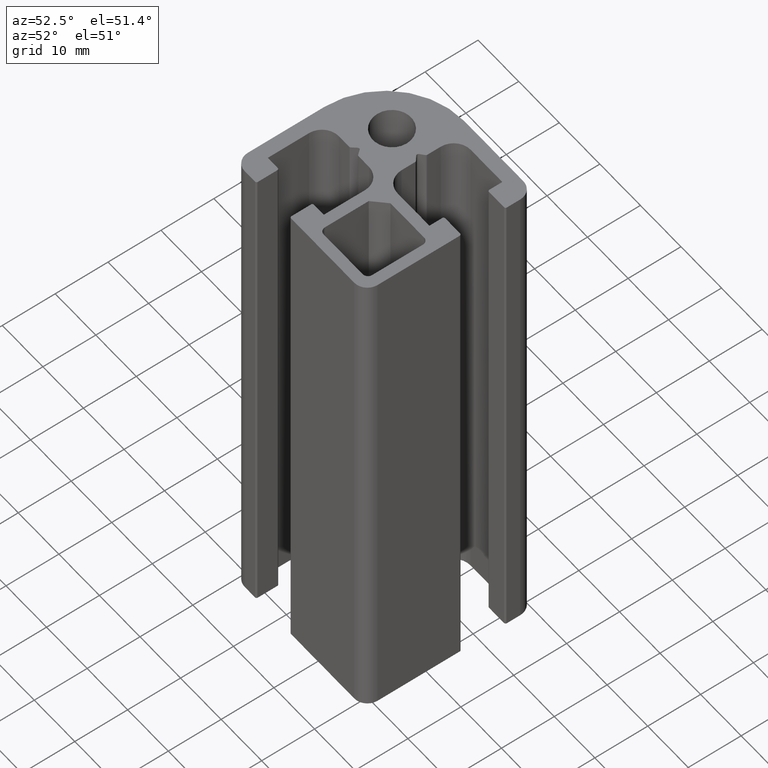
[diagram: clean part render]
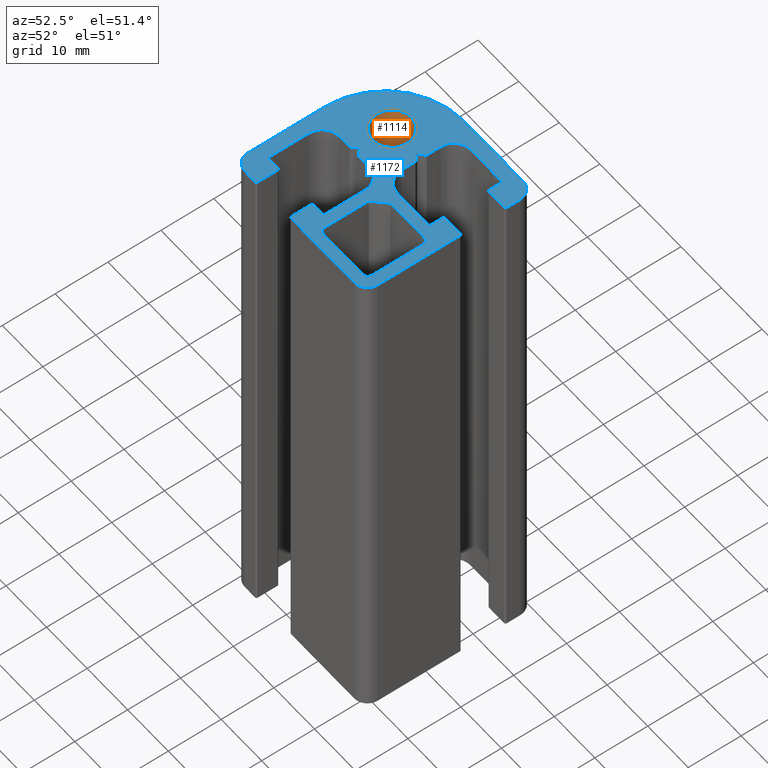
[diagram: same view with the hole feature highlighted: cylindrical wall and planar end face, labeled with their STEP entity ids]
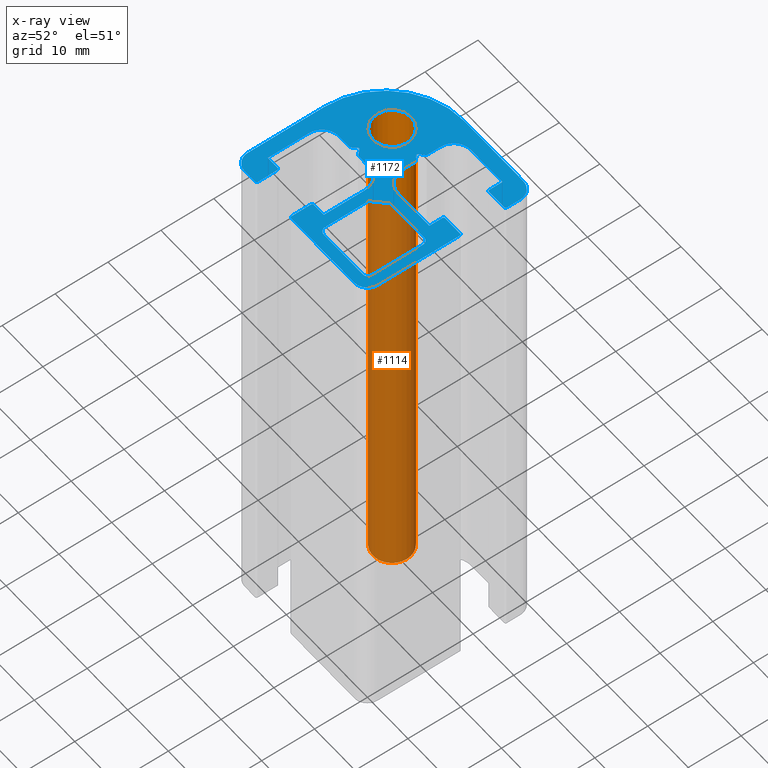
[diagram: x-ray of the same camera — body ghosted, the hole faces saturated]
A machine part, auxiliary view. The highlighted faces form one hole feature of diameter 7.2 mm: the cylindrical wall (entity #1114, orange) and its adjacent planar end face (entity #1172, blue) — they share a circular edge in the B-rep.
The next image is the same camera in x-ray (body ghosted, the hole faces saturated) — the bore reads through the body.
Wall:
#284=FACE_BOUND('',#349,.T.);
#289=FACE_OUTER_BOUND('',#348,.T.);
#348=EDGE_LOOP('',(#748));
#349=EDGE_LOOP('',(#749));
#412=CIRCLE('',#1176,3.6);
#413=CIRCLE('',#1177,3.6);
#464=VERTEX_POINT('',#1630);
#465=VERTEX_POINT('',#1632);
#578=EDGE_CURVE('',#464,#464,#412,.T.);
#579=EDGE_CURVE('',#465,#465,#413,.T.);
#748=ORIENTED_EDGE('',*,*,#578,.F.);
#749=ORIENTED_EDGE('',*,*,#579,.F.);
#1088=CYLINDRICAL_SURFACE('',#1175,3.6);
#1114=ADVANCED_FACE('',(#289,#284),#1088,.F.);
#1175=AXIS2_PLACEMENT_3D('',#1629,#1288,#1289);
#1176=AXIS2_PLACEMENT_3D('',#1631,#1290,#1291);
#1177=AXIS2_PLACEMENT_3D('',#1633,#1292,#1293);
#1288=DIRECTION('center_axis',(0.,0.,1.));
#1289=DIRECTION('ref_axis',(-1.,0.,0.));
#1290=DIRECTION('center_axis',(0.,0.,-1.));
#1291=DIRECTION('ref_axis',(-1.,0.,0.));
#1292=DIRECTION('center_axis',(0.,0.,1.));
#1293=DIRECTION('ref_axis',(-1.,0.,0.));
#1629=CARTESIAN_POINT('Origin',(0.,0.,0.));
#1630=CARTESIAN_POINT('',(3.6,-4.40872847693047E-16,100.));
#1631=CARTESIAN_POINT('Origin',(0.,0.,100.));
#1632=CARTESIAN_POINT('',(3.6,4.40872847693047E-16,0.));
#1633=CARTESIAN_POINT('Origin',(0.,0.,0.));
End face:
#47=PLANE('',#1285);
#50=LINE('',#1645,#168);
#53=LINE('',#1651,#171);
#56=LINE('',#1657,#174);
#60=LINE('',#1669,#178);
#64=LINE('',#1680,#182);
#68=LINE('',#1693,#186);
#74=LINE('',#1714,#192);
#78=LINE('',#1726,#196);
#81=LINE('',#1732,#199);
#85=LINE('',#1744,#203);
#89=LINE('',#1756,#207);
#93=LINE('',#1768,#211);
#97=LINE('',#1780,#215);
#101=LINE('',#1792,#219);
#104=LINE('',#1797,#222);
#108=LINE('',#1811,#226);
#112=LINE('',#1819,#230);
#116=LINE('',#1831,#234);
#120=LINE('',#1843,#238);
#124=LINE('',#1855,#242);
#128=LINE('',#1867,#246);
#132=LINE('',#1879,#250);
#135=LINE('',#1885,#253);
#139=LINE('',#1897,#257);
#145=LINE('',#1918,#263);
#148=LINE('',#1927,#266);
#151=LINE('',#1933,#269);
#156=LINE('',#1942,#274);
#157=LINE('',#1945,#275);
#163=LINE('',#1962,#281);
#165=LINE('',#1970,#283);
#168=VECTOR('',#1304,8.26653849340352);
#171=VECTOR('',#1309,3.30001290057615);
#174=VECTOR('',#1314,8.26653849340351);
#178=VECTOR('',#1326,9.59999998680799);
#182=VECTOR('',#1338,9.59999998680799);
#186=VECTOR('',#1350,3.7000000000012);
#192=VECTOR('',#1370,3.7000000000012);
#196=VECTOR('',#1382,2.4500000000006);
#199=VECTOR('',#1387,7.79999993120909);
#203=VECTOR('',#1399,2.56570460979728);
#207=VECTOR('',#1411,1.04228622063041);
#211=VECTOR('',#1423,1.04228513007787);
#215=VECTOR('',#1435,2.56091760979783);
#219=VECTOR('',#1447,7.79999993120908);
#222=VECTOR('',#1452,2.45000000000059);
#226=VECTOR('',#1464,2.4500000000006);
#230=VECTOR('',#1470,7.79999993120908);
#234=VECTOR('',#1482,2.56331160979666);
#238=VECTOR('',#1494,1.04228512855236);
#242=VECTOR('',#1506,1.04228513158356);
#246=VECTOR('',#1518,2.56331160979783);
#250=VECTOR('',#1530,7.79999993120909);
#253=VECTOR('',#1535,2.4500000000006);
#257=VECTOR('',#1547,3.70000000000119);
#263=VECTOR('',#1567,3.70000000000119);
#266=VECTOR('',#1578,2.5500000000006);
#269=VECTOR('',#1583,14.5);
#274=VECTOR('',#1590,2.55000000000061);
#275=VECTOR('',#1593,15.5500000000006);
#281=VECTOR('',#1613,14.5);
#283=VECTOR('',#1625,15.5500000000006);
#287=FACE_BOUND('',#410,.T.);
#288=FACE_BOUND('',#411,.T.);
#347=FACE_OUTER_BOUND('',#409,.T.);
#409=EDGE_LOOP('',(#1031,#1032,#1033,#1034,#1035,#1036,#1037,#1038,#1039,
#1040,#1041,#1042,#1043,#1044,#1045,#1046,#1047,#1048,#1049,#1050,#1051,
#1052,#1053,#1054,#1055,#1056,#1057,#1058,#1059,#1060,#1061,#1062,#1063,
#1064,#1065,#1066,#1067,#1068,#1069,#1070,#1071,#1072,#1073,#1074,#1075,
#1076,#1077,#1078));
#410=EDGE_LOOP('',(#1079));
#411=EDGE_LOOP('',(#1080,#1081,#1082,#1083,#1084,#1085,#1086,#1087));
#412=CIRCLE('',#1176,3.6);
#414=CIRCLE('',#1179,1.000000006596);
#416=CIRCLE('',#1185,1.000000006596);
#418=CIRCLE('',#1189,1.000000006596);
#420=CIRCLE('',#1193,0.299999999999407);
#422=CIRCLE('',#1197,0.299999999999406);
#424=CIRCLE('',#1200,0.299999999999407);
#426=CIRCLE('',#1204,0.299999999999405);
#428=CIRCLE('',#1209,3.20000006879091);
#430=CIRCLE('',#1213,0.299999999999405);
#432=CIRCLE('',#1217,0.299999999999406);
#434=CIRCLE('',#1221,0.299999999999406);
#436=CIRCLE('',#1225,3.20000006879091);
#438=CIRCLE('',#1230,15.);
#440=CIRCLE('',#1235,3.20000006879091);
#442=CIRCLE('',#1239,0.299999999999406);
#444=CIRCLE('',#1243,0.299999999999406);
#446=CIRCLE('',#1247,0.299999999999406);
#448=CIRCLE('',#1251,3.20000006879091);
#450=CIRCLE('',#1256,0.299999999999407);
#452=CIRCLE('',#1260,0.299999999999405);
#454=CIRCLE('',#1263,0.299999999999407);
#456=CIRCLE('',#1267,0.299999999999405);
#461=CIRCLE('',#1278,2.5);
#462=CIRCLE('',#1281,2.5);
#463=CIRCLE('',#1283,2.5);
#464=VERTEX_POINT('',#1630);
#466=VERTEX_POINT('',#1635);
#467=VERTEX_POINT('',#1636);
#470=VERTEX_POINT('',#1644);
#472=VERTEX_POINT('',#1650);
#474=VERTEX_POINT('',#1656);
#476=VERTEX_POINT('',#1662);
#478=VERTEX_POINT('',#1668);
#480=VERTEX_POINT('',#1674);
#482=VERTEX_POINT('',#1683);
#483=VERTEX_POINT('',#1684);
#486=VERTEX_POINT('',#1692);
#488=VERTEX_POINT('',#1698);
#490=VERTEX_POINT('',#1704);
#491=VERTEX_POINT('',#1705);
#494=VERTEX_POINT('',#1713);
#496=VERTEX_POINT('',#1719);
#498=VERTEX_POINT('',#1725);
#500=VERTEX_POINT('',#1731);
#502=VERTEX_POINT('',#1737);
#504=VERTEX_POINT('',#1743);
#506=VERTEX_POINT('',#1749);
#508=VERTEX_POINT('',#1755);
#510=VERTEX_POINT('',#1761);
#512=VERTEX_POINT('',#1767);
#514=VERTEX_POINT('',#1773);
#516=VERTEX_POINT('',#1779);
#518=VERTEX_POINT('',#1785);
#520=VERTEX_POINT('',#1791);
#522=VERTEX_POINT('',#1800);
#523=VERTEX_POINT('',#1801);
#526=VERTEX_POINT('',#1809);
#527=VERTEX_POINT('',#1810);
#530=VERTEX_POINT('',#1818);
#532=VERTEX_POINT('',#1824);
#534=VERTEX_POINT('',#1830);
#536=VERTEX_POINT('',#1836);
#538=VERTEX_POINT('',#1842);
#540=VERTEX_POINT('',#1848);
#542=VERTEX_POINT('',#1854);
#544=VERTEX_POINT('',#1860);
#546=VERTEX_POINT('',#1866);
#548=VERTEX_POINT('',#1872);
#550=VERTEX_POINT('',#1878);
#552=VERTEX_POINT('',#1884);
#554=VERTEX_POINT('',#1890);
#556=VERTEX_POINT('',#1896);
#558=VERTEX_POINT('',#1902);
#560=VERTEX_POINT('',#1908);
#561=VERTEX_POINT('',#1909);
#564=VERTEX_POINT('',#1917);
#566=VERTEX_POINT('',#1926);
#568=VERTEX_POINT('',#1932);
#571=VERTEX_POINT('',#1940);
#572=VERTEX_POINT('',#1944);
#576=VERTEX_POINT('',#1958);
#577=VERTEX_POINT('',#1966);
#578=EDGE_CURVE('',#464,#464,#412,.T.);
#580=EDGE_CURVE('',#466,#467,#414,.T.);
#584=EDGE_CURVE('',#467,#470,#50,.T.);
#587=EDGE_CURVE('',#470,#472,#53,.T.);
#590=EDGE_CURVE('',#472,#474,#56,.T.);
#593=EDGE_CURVE('',#474,#476,#416,.T.);
#596=EDGE_CURVE('',#476,#478,#60,.T.);
#599=EDGE_CURVE('',#478,#480,#418,.T.);
#602=EDGE_CURVE('',#480,#466,#64,.T.);
#604=EDGE_CURVE('',#482,#483,#420,.T.);
#608=EDGE_CURVE('',#486,#482,#68,.T.);
#611=EDGE_CURVE('',#488,#486,#422,.T.);
#614=EDGE_CURVE('',#490,#491,#424,.T.);
#618=EDGE_CURVE('',#494,#490,#74,.T.);
#621=EDGE_CURVE('',#496,#494,#426,.T.);
#624=EDGE_CURVE('',#498,#496,#78,.T.);
#627=EDGE_CURVE('',#500,#498,#81,.T.);
#630=EDGE_CURVE('',#502,#500,#428,.T.);
#633=EDGE_CURVE('',#504,#502,#85,.T.);
#636=EDGE_CURVE('',#506,#504,#430,.T.);
#639=EDGE_CURVE('',#508,#506,#89,.T.);
#642=EDGE_CURVE('',#510,#508,#432,.T.);
#645=EDGE_CURVE('',#512,#510,#93,.T.);
#648=EDGE_CURVE('',#514,#512,#434,.T.);
#651=EDGE_CURVE('',#516,#514,#97,.T.);
#654=EDGE_CURVE('',#518,#516,#436,.T.);
#657=EDGE_CURVE('',#520,#518,#101,.T.);
#660=EDGE_CURVE('',#483,#520,#104,.T.);
#662=EDGE_CURVE('',#522,#523,#438,.T.);
#666=EDGE_CURVE('',#526,#527,#108,.T.);
#670=EDGE_CURVE('',#530,#526,#112,.T.);
#673=EDGE_CURVE('',#532,#530,#440,.T.);
#676=EDGE_CURVE('',#534,#532,#116,.T.);
#679=EDGE_CURVE('',#536,#534,#442,.T.);
#682=EDGE_CURVE('',#538,#536,#120,.T.);
#685=EDGE_CURVE('',#540,#538,#444,.T.);
#688=EDGE_CURVE('',#542,#540,#124,.T.);
#691=EDGE_CURVE('',#544,#542,#446,.T.);
#694=EDGE_CURVE('',#546,#544,#128,.T.);
#697=EDGE_CURVE('',#548,#546,#448,.T.);
#700=EDGE_CURVE('',#550,#548,#132,.T.);
#703=EDGE_CURVE('',#552,#550,#135,.T.);
#706=EDGE_CURVE('',#554,#552,#450,.T.);
#709=EDGE_CURVE('',#556,#554,#139,.T.);
#712=EDGE_CURVE('',#558,#556,#452,.T.);
#715=EDGE_CURVE('',#560,#561,#454,.T.);
#719=EDGE_CURVE('',#564,#560,#145,.T.);
#722=EDGE_CURVE('',#527,#564,#456,.T.);
#724=EDGE_CURVE('',#488,#566,#148,.T.);
#727=EDGE_CURVE('',#522,#568,#151,.T.);
#732=EDGE_CURVE('',#571,#561,#156,.T.);
#733=EDGE_CURVE('',#558,#572,#157,.T.);
#741=EDGE_CURVE('',#566,#576,#461,.T.);
#743=EDGE_CURVE('',#576,#523,#163,.T.);
#744=EDGE_CURVE('',#568,#571,#462,.T.);
#745=EDGE_CURVE('',#572,#577,#463,.T.);
#747=EDGE_CURVE('',#577,#491,#165,.T.);
#1031=ORIENTED_EDGE('',*,*,#614,.T.);
#1032=ORIENTED_EDGE('',*,*,#747,.F.);
#1033=ORIENTED_EDGE('',*,*,#745,.F.);
#1034=ORIENTED_EDGE('',*,*,#733,.F.);
#1035=ORIENTED_EDGE('',*,*,#712,.T.);
#1036=ORIENTED_EDGE('',*,*,#709,.T.);
#1037=ORIENTED_EDGE('',*,*,#706,.T.);
#1038=ORIENTED_EDGE('',*,*,#703,.T.);
#1039=ORIENTED_EDGE('',*,*,#700,.T.);
#1040=ORIENTED_EDGE('',*,*,#697,.T.);
#1041=ORIENTED_EDGE('',*,*,#694,.T.);
#1042=ORIENTED_EDGE('',*,*,#691,.T.);
#1043=ORIENTED_EDGE('',*,*,#688,.T.);
#1044=ORIENTED_EDGE('',*,*,#685,.T.);
#1045=ORIENTED_EDGE('',*,*,#682,.T.);
#1046=ORIENTED_EDGE('',*,*,#679,.T.);
#1047=ORIENTED_EDGE('',*,*,#676,.T.);
#1048=ORIENTED_EDGE('',*,*,#673,.T.);
#1049=ORIENTED_EDGE('',*,*,#670,.T.);
#1050=ORIENTED_EDGE('',*,*,#666,.T.);
#1051=ORIENTED_EDGE('',*,*,#722,.T.);
#1052=ORIENTED_EDGE('',*,*,#719,.T.);
#1053=ORIENTED_EDGE('',*,*,#715,.T.);
#1054=ORIENTED_EDGE('',*,*,#732,.F.);
#1055=ORIENTED_EDGE('',*,*,#744,.F.);
#1056=ORIENTED_EDGE('',*,*,#727,.F.);
#1057=ORIENTED_EDGE('',*,*,#662,.T.);
#1058=ORIENTED_EDGE('',*,*,#743,.F.);
#1059=ORIENTED_EDGE('',*,*,#741,.F.);
#1060=ORIENTED_EDGE('',*,*,#724,.F.);
#1061=ORIENTED_EDGE('',*,*,#611,.T.);
#1062=ORIENTED_EDGE('',*,*,#608,.T.);
#1063=ORIENTED_EDGE('',*,*,#604,.T.);
#1064=ORIENTED_EDGE('',*,*,#660,.T.);
#1065=ORIENTED_EDGE('',*,*,#657,.T.);
#1066=ORIENTED_EDGE('',*,*,#654,.T.);
#1067=ORIENTED_EDGE('',*,*,#651,.T.);
#1068=ORIENTED_EDGE('',*,*,#648,.T.);
#1069=ORIENTED_EDGE('',*,*,#645,.T.);
#1070=ORIENTED_EDGE('',*,*,#642,.T.);
#1071=ORIENTED_EDGE('',*,*,#639,.T.);
#1072=ORIENTED_EDGE('',*,*,#636,.T.);
#1073=ORIENTED_EDGE('',*,*,#633,.T.);
#1074=ORIENTED_EDGE('',*,*,#630,.T.);
#1075=ORIENTED_EDGE('',*,*,#627,.T.);
#1076=ORIENTED_EDGE('',*,*,#624,.T.);
#1077=ORIENTED_EDGE('',*,*,#621,.T.);
#1078=ORIENTED_EDGE('',*,*,#618,.T.);
#1079=ORIENTED_EDGE('',*,*,#578,.T.);
#1080=ORIENTED_EDGE('',*,*,#580,.T.);
#1081=ORIENTED_EDGE('',*,*,#584,.T.);
#1082=ORIENTED_EDGE('',*,*,#587,.T.);
#1083=ORIENTED_EDGE('',*,*,#590,.T.);
#1084=ORIENTED_EDGE('',*,*,#593,.T.);
#1085=ORIENTED_EDGE('',*,*,#596,.T.);
#1086=ORIENTED_EDGE('',*,*,#599,.T.);
#1087=ORIENTED_EDGE('',*,*,#602,.T.);
#1172=ADVANCED_FACE('',(#347,#287,#288),#47,.T.);
#1176=AXIS2_PLACEMENT_3D('',#1631,#1290,#1291);
#1179=AXIS2_PLACEMENT_3D('',#1637,#1296,#1297);
#1185=AXIS2_PLACEMENT_3D('',#1663,#1319,#1320);
#1189=AXIS2_PLACEMENT_3D('',#1675,#1331,#1332);
#1193=AXIS2_PLACEMENT_3D('',#1685,#1342,#1343);
#1197=AXIS2_PLACEMENT_3D('',#1699,#1355,#1356);
#1200=AXIS2_PLACEMENT_3D('',#1706,#1362,#1363);
#1204=AXIS2_PLACEMENT_3D('',#1720,#1375,#1376);
#1209=AXIS2_PLACEMENT_3D('',#1738,#1392,#1393);
#1213=AXIS2_PLACEMENT_3D('',#1750,#1404,#1405);
#1217=AXIS2_PLACEMENT_3D('',#1762,#1416,#1417);
#1221=AXIS2_PLACEMENT_3D('',#1774,#1428,#1429);
#1225=AXIS2_PLACEMENT_3D('',#1786,#1440,#1441);
#1230=AXIS2_PLACEMENT_3D('',#1802,#1456,#1457);
#1235=AXIS2_PLACEMENT_3D('',#1825,#1475,#1476);
#1239=AXIS2_PLACEMENT_3D('',#1837,#1487,#1488);
#1243=AXIS2_PLACEMENT_3D('',#1849,#1499,#1500);
#1247=AXIS2_PLACEMENT_3D('',#1861,#1511,#1512);
#1251=AXIS2_PLACEMENT_3D('',#1873,#1523,#1524);
#1256=AXIS2_PLACEMENT_3D('',#1891,#1540,#1541);
#1260=AXIS2_PLACEMENT_3D('',#1903,#1552,#1553);
#1263=AXIS2_PLACEMENT_3D('',#1910,#1559,#1560);
#1267=AXIS2_PLACEMENT_3D('',#1923,#1572,#1573);
#1278=AXIS2_PLACEMENT_3D('',#1959,#1608,#1609);
#1281=AXIS2_PLACEMENT_3D('',#1964,#1616,#1617);
#1283=AXIS2_PLACEMENT_3D('',#1967,#1620,#1621);
#1285=AXIS2_PLACEMENT_3D('',#1971,#1626,#1627);
#1290=DIRECTION('center_axis',(0.,0.,-1.));
#1291=DIRECTION('ref_axis',(-1.,0.,0.));
#1296=DIRECTION('center_axis',(0.,0.,-1.));
#1297=DIRECTION('ref_axis',(1.,0.,0.));
#1304=DIRECTION('',(-2.686065093657E-16,1.,0.));
#1309=DIRECTION('',(0.707106781186547,0.707106781186547,0.));
#1314=DIRECTION('',(1.,4.0290976404855E-16,0.));
#1319=DIRECTION('center_axis',(0.,0.,-1.));
#1320=DIRECTION('ref_axis',(-1.,0.,0.));
#1326=DIRECTION('',(0.,-1.,0.));
#1331=DIRECTION('center_axis',(0.,0.,-1.));
#1332=DIRECTION('ref_axis',(0.,1.,0.));
#1338=DIRECTION('',(-1.,-4.62592927562829E-16,0.));
#1342=DIRECTION('center_axis',(0.,0.,1.));
#1343=DIRECTION('ref_axis',(-1.,-1.4802973661698E-14,0.));
#1350=DIRECTION('',(1.05021096923967E-15,1.,0.));
#1355=DIRECTION('center_axis',(0.,0.,1.));
#1356=DIRECTION('ref_axis',(-2.96059473233964E-14,1.,0.));
#1362=DIRECTION('center_axis',(0.,0.,1.));
#1363=DIRECTION('ref_axis',(1.,1.4802973661698E-14,0.));
#1370=DIRECTION('',(-7.50150692314052E-16,-1.,0.));
#1375=DIRECTION('center_axis',(0.,0.,1.));
#1376=DIRECTION('ref_axis',(-1.85037170771226E-15,-1.,0.));
#1382=DIRECTION('',(-1.,-9.06304509897867E-16,0.));
#1387=DIRECTION('',(1.42336286463667E-16,-1.,0.));
#1392=DIRECTION('center_axis',(0.,0.,-1.));
#1393=DIRECTION('ref_axis',(1.,0.,0.));
#1399=DIRECTION('',(1.,-8.65433238406099E-16,0.));
#1404=DIRECTION('center_axis',(0.,0.,1.));
#1405=DIRECTION('ref_axis',(0.754605563473704,0.656178667418054,0.));
#1411=DIRECTION('',(0.656178667408914,-0.754605563481652,0.));
#1416=DIRECTION('center_axis',(0.,0.,-1.));
#1417=DIRECTION('ref_axis',(0.754605563473701,0.656178667418058,0.));
#1423=DIRECTION('',(0.656178121099265,0.754606038533113,0.));
#1428=DIRECTION('center_axis',(0.,0.,1.));
#1429=DIRECTION('ref_axis',(-4.6398070570885E-13,1.,0.));
#1435=DIRECTION('',(1.,4.61271105982368E-13,0.));
#1440=DIRECTION('center_axis',(0.,0.,-1.));
#1441=DIRECTION('ref_axis',(0.,1.,0.));
#1447=DIRECTION('',(2.84672572927333E-16,1.,0.));
#1452=DIRECTION('',(-1.,1.81260901979573E-15,0.));
#1456=DIRECTION('center_axis',(0.,0.,1.));
#1457=DIRECTION('ref_axis',(-2.96059473233375E-16,-1.,0.));
#1464=DIRECTION('',(2.7189135296936E-15,-1.,0.));
#1470=DIRECTION('',(1.,1.42336286463667E-16,0.));
#1475=DIRECTION('center_axis',(0.,0.,-1.));
#1476=DIRECTION('ref_axis',(0.,1.,0.));
#1482=DIRECTION('',(4.33120585254645E-16,1.,0.));
#1487=DIRECTION('center_axis',(0.,0.,1.));
#1488=DIRECTION('ref_axis',(-0.656178121090121,0.754606038541064,0.));
#1494=DIRECTION('',(0.754606039638916,0.65617811982759,0.));
#1499=DIRECTION('center_axis',(0.,0.,-1.));
#1500=DIRECTION('ref_axis',(-0.656178121090121,0.754606038541065,0.));
#1506=DIRECTION('',(-0.754606037443213,0.656178122352652,0.));
#1511=DIRECTION('center_axis',(0.,0.,1.));
#1512=DIRECTION('ref_axis',(-1.,-4.6351811278192E-13,0.));
#1518=DIRECTION('',(-4.63439026222259E-13,1.,0.));
#1523=DIRECTION('center_axis',(0.,0.,-1.));
#1524=DIRECTION('ref_axis',(-1.,0.,0.));
#1530=DIRECTION('',(-1.,1.42336286463667E-16,0.));
#1535=DIRECTION('',(0.,-1.,0.));
#1540=DIRECTION('center_axis',(0.,0.,1.));
#1541=DIRECTION('ref_axis',(1.4802973661698E-14,-1.,0.));
#1547=DIRECTION('',(-1.,7.50150692314054E-16,0.));
#1552=DIRECTION('center_axis',(0.,0.,1.));
#1553=DIRECTION('ref_axis',(-1.,-1.29526019539856E-14,0.));
#1559=DIRECTION('center_axis',(0.,0.,1.));
#1560=DIRECTION('ref_axis',(-1.4802973661698E-14,1.,0.));
#1567=DIRECTION('',(1.,-1.50030138462811E-16,0.));
#1572=DIRECTION('center_axis',(0.,0.,1.));
#1573=DIRECTION('ref_axis',(1.,-1.85037170771226E-15,0.));
#1578=DIRECTION('',(-1.,1.64477485129653E-16,0.));
#1583=DIRECTION('',(1.,-8.22387425648264E-17,0.));
#1590=DIRECTION('',(1.64477485129653E-16,-1.,0.));
#1593=DIRECTION('',(1.64477485129653E-16,-1.,0.));
#1608=DIRECTION('center_axis',(0.,0.,-1.));
#1609=DIRECTION('ref_axis',(1.,0.,0.));
#1613=DIRECTION('',(0.,1.,0.));
#1616=DIRECTION('center_axis',(0.,0.,-1.));
#1617=DIRECTION('ref_axis',(-1.,-1.33226762955019E-15,0.));
#1620=DIRECTION('center_axis',(0.,0.,-1.));
#1621=DIRECTION('ref_axis',(1.77635683940025E-15,1.,0.));
#1625=DIRECTION('',(-1.,1.64477485129653E-16,0.));
#1626=DIRECTION('center_axis',(0.,0.,1.));
#1627=DIRECTION('ref_axis',(1.,0.,0.));
#1630=CARTESIAN_POINT('',(3.6,-4.40872847693047E-16,100.));
#1631=CARTESIAN_POINT('Origin',(0.,0.,100.));
#1635=CARTESIAN_POINT('',(9.900000006596,-20.5,100.));
#1636=CARTESIAN_POINT('',(8.9,-19.499999993404,100.));
#1637=CARTESIAN_POINT('Origin',(9.900000006596,-19.499999993404,100.));
#1644=CARTESIAN_POINT('',(8.89999999999999,-11.2334615000005,100.));
#1645=CARTESIAN_POINT('',(8.89999999999999,-8.86673075000024,100.));
#1650=CARTESIAN_POINT('',(11.2334615000005,-8.9,100.));
#1651=CARTESIAN_POINT('',(10.6500961250004,-9.48336537500012,100.));
#1656=CARTESIAN_POINT('',(19.499999993404,-8.9,100.));
#1657=CARTESIAN_POINT('',(12.999999996702,-8.9,100.));
#1662=CARTESIAN_POINT('',(20.5,-9.900000006596,100.));
#1663=CARTESIAN_POINT('Origin',(19.499999993404,-9.900000006596,100.));
#1668=CARTESIAN_POINT('',(20.5,-19.499999993404,100.));
#1669=CARTESIAN_POINT('',(20.5,-12.999999996702,100.));
#1674=CARTESIAN_POINT('',(19.499999993404,-20.5,100.));
#1675=CARTESIAN_POINT('Origin',(19.499999993404,-19.499999993404,100.));
#1680=CARTESIAN_POINT('',(8.200000003298,-20.5,100.));
#1683=CARTESIAN_POINT('',(-4.15,-18.4999999999994,100.));
#1684=CARTESIAN_POINT('',(-4.44999999999941,-18.2,100.));
#1685=CARTESIAN_POINT('Origin',(-4.44999999999941,-18.4999999999994,100.));
#1692=CARTESIAN_POINT('',(-4.15,-22.2000000000006,100.));
#1693=CARTESIAN_POINT('',(-4.14999999999999,-12.4999999999997,100.));
#1698=CARTESIAN_POINT('',(-4.4499999999994,-22.5,100.));
#1699=CARTESIAN_POINT('Origin',(-4.44999999999941,-22.2000000000006,100.));
#1704=CARTESIAN_POINT('',(4.15,-22.2000000000006,100.));
#1705=CARTESIAN_POINT('',(4.4499999999994,-22.5,100.));
#1706=CARTESIAN_POINT('Origin',(4.4499999999994,-22.2000000000006,100.));
#1713=CARTESIAN_POINT('',(4.15,-18.4999999999994,100.));
#1714=CARTESIAN_POINT('',(4.15,-14.3500000000003,100.));
#1719=CARTESIAN_POINT('',(4.4499999999994,-18.2,100.));
#1720=CARTESIAN_POINT('Origin',(4.4499999999994,-18.4999999999994,100.));
#1725=CARTESIAN_POINT('',(6.9,-18.2,100.));
#1726=CARTESIAN_POINT('',(5.47499999999971,-18.2,100.));
#1731=CARTESIAN_POINT('',(6.9,-10.4000000687909,100.));
#1732=CARTESIAN_POINT('',(6.9,-12.35,100.));
#1737=CARTESIAN_POINT('',(3.69999993120908,-7.2,100.));
#1738=CARTESIAN_POINT('Origin',(3.69999993120908,-10.4000000687909,100.));
#1743=CARTESIAN_POINT('',(1.13429532141181,-7.2,100.));
#1744=CARTESIAN_POINT('',(5.09999996560454,-7.2,100.));
#1749=CARTESIAN_POINT('',(0.907913652370146,-7.09685360022562,100.));
#1750=CARTESIAN_POINT('Origin',(1.13429532141181,-6.90000000000059,100.));
#1755=CARTESIAN_POINT('',(0.223987669058208,-6.31033861939764,100.));
#1756=CARTESIAN_POINT('',(1.96403935949851,-8.31139831787401,100.));
#1761=CARTESIAN_POINT('',(-0.228775811545325,-6.31033878329603,100.));
#1762=CARTESIAN_POINT('Origin',(-0.00239399998345412,-6.50719221962267,
100.));
#1767=CARTESIAN_POINT('',(-0.912700509849525,-7.09685343632606,100.));
#1768=CARTESIAN_POINT('',(1.17287182714645,-4.69844143706846,100.));
#1773=CARTESIAN_POINT('',(-1.13908232141126,-7.19999999999882,100.));
#1774=CARTESIAN_POINT('Origin',(-1.1390823214114,-6.89999999999941,100.));
#1779=CARTESIAN_POINT('',(-3.69999993120909,-7.2,100.));
#1780=CARTESIAN_POINT('',(2.68045883929453,-7.19999999999706,100.));
#1785=CARTESIAN_POINT('',(-6.9,-10.4000000687909,100.));
#1786=CARTESIAN_POINT('Origin',(-3.69999993120909,-10.4000000687909,100.));
#1791=CARTESIAN_POINT('',(-6.9,-18.2,100.));
#1792=CARTESIAN_POINT('',(-6.9,-8.45000003439545,100.));
#1797=CARTESIAN_POINT('',(-0.200000000000012,-18.2,100.));
#1800=CARTESIAN_POINT('',(5.5,9.5,100.));
#1801=CARTESIAN_POINT('',(-9.5,-5.5,100.));
#1802=CARTESIAN_POINT('Origin',(5.5,-5.5,100.));
#1809=CARTESIAN_POINT('',(18.2,6.9,100.));
#1810=CARTESIAN_POINT('',(18.2,4.44999999999941,100.));
#1811=CARTESIAN_POINT('',(18.2,-1.02500000000028,100.));
#1818=CARTESIAN_POINT('',(10.4000000687909,6.9,100.));
#1819=CARTESIAN_POINT('',(12.35,6.9,100.));
#1824=CARTESIAN_POINT('',(7.2,3.69999993120909,100.));
#1825=CARTESIAN_POINT('Origin',(10.4000000687909,3.69999993120909,100.));
#1830=CARTESIAN_POINT('',(7.2,1.13668832141242,100.));
#1831=CARTESIAN_POINT('',(7.2,-1.40000003439546,100.));
#1836=CARTESIAN_POINT('',(7.09685343632724,0.910306509850554,100.));
#1837=CARTESIAN_POINT('Origin',(6.90000000000059,1.13668832141242,100.));
#1842=CARTESIAN_POINT('',(6.3103387832958,0.226381813872808,100.));
#1843=CARTESIAN_POINT('',(5.09229146565219,-0.832788079777761,100.));
#1848=CARTESIAN_POINT('',(6.3103387832958,-0.226381809250934,100.));
#1849=CARTESIAN_POINT('Origin',(6.50719221962245,2.31093708058516E-9,100.));
#1854=CARTESIAN_POINT('',(7.09685343632605,-0.910306509849521,100.));
#1855=CARTESIAN_POINT('',(7.91754796137928,-1.62395279115834,100.));
#1860=CARTESIAN_POINT('',(7.19999999999881,-1.13668832141125,100.));
#1861=CARTESIAN_POINT('Origin',(6.89999999999941,-1.13668832141139,100.));
#1866=CARTESIAN_POINT('',(7.2,-3.69999993120908,100.));
#1867=CARTESIAN_POINT('',(7.20000000000005,-3.81834416070546,100.));
#1872=CARTESIAN_POINT('',(10.4000000687909,-6.9,100.));
#1873=CARTESIAN_POINT('Origin',(10.4000000687909,-3.69999993120908,100.));
#1878=CARTESIAN_POINT('',(18.2,-6.9,100.));
#1879=CARTESIAN_POINT('',(8.45000003439546,-6.9,100.));
#1884=CARTESIAN_POINT('',(18.2,-4.4499999999994,100.));
#1885=CARTESIAN_POINT('',(18.2,-6.7,100.));
#1890=CARTESIAN_POINT('',(18.4999999999994,-4.15,100.));
#1891=CARTESIAN_POINT('Origin',(18.4999999999994,-4.4499999999994,100.));
#1896=CARTESIAN_POINT('',(22.2000000000006,-4.15,100.));
#1897=CARTESIAN_POINT('',(12.4999999999997,-4.14999999999999,100.));
#1902=CARTESIAN_POINT('',(22.5,-4.4499999999994,100.));
#1903=CARTESIAN_POINT('Origin',(22.2000000000006,-4.4499999999994,100.));
#1908=CARTESIAN_POINT('',(22.2000000000006,4.15,100.));
#1909=CARTESIAN_POINT('',(22.5,4.4499999999994,100.));
#1910=CARTESIAN_POINT('Origin',(22.2000000000006,4.44999999999941,100.));
#1917=CARTESIAN_POINT('',(18.4999999999994,4.15,100.));
#1918=CARTESIAN_POINT('',(14.3500000000003,4.15,100.));
#1923=CARTESIAN_POINT('Origin',(18.4999999999994,4.44999999999941,100.));
#1926=CARTESIAN_POINT('',(-7.,-22.5,100.));
#1927=CARTESIAN_POINT('',(-0.250000000000003,-22.5,100.));
#1932=CARTESIAN_POINT('',(20.,9.5,100.));
#1933=CARTESIAN_POINT('',(13.25,9.5,100.));
#1940=CARTESIAN_POINT('',(22.5,7.,100.));
#1942=CARTESIAN_POINT('',(22.5,-13.25,100.));
#1944=CARTESIAN_POINT('',(22.5,-20.,100.));
#1945=CARTESIAN_POINT('',(22.5,-13.25,100.));
#1958=CARTESIAN_POINT('',(-9.5,-20.,100.));
#1959=CARTESIAN_POINT('Origin',(-7.,-20.,100.));
#1962=CARTESIAN_POINT('',(-9.5,0.250000000000001,100.));
#1964=CARTESIAN_POINT('Origin',(20.,7.,100.));
#1966=CARTESIAN_POINT('',(20.,-22.5,100.));
#1967=CARTESIAN_POINT('Origin',(20.,-20.,100.));
#1970=CARTESIAN_POINT('',(-0.250000000000003,-22.5,100.));
#1971=CARTESIAN_POINT('Origin',(6.5,-6.5,100.));